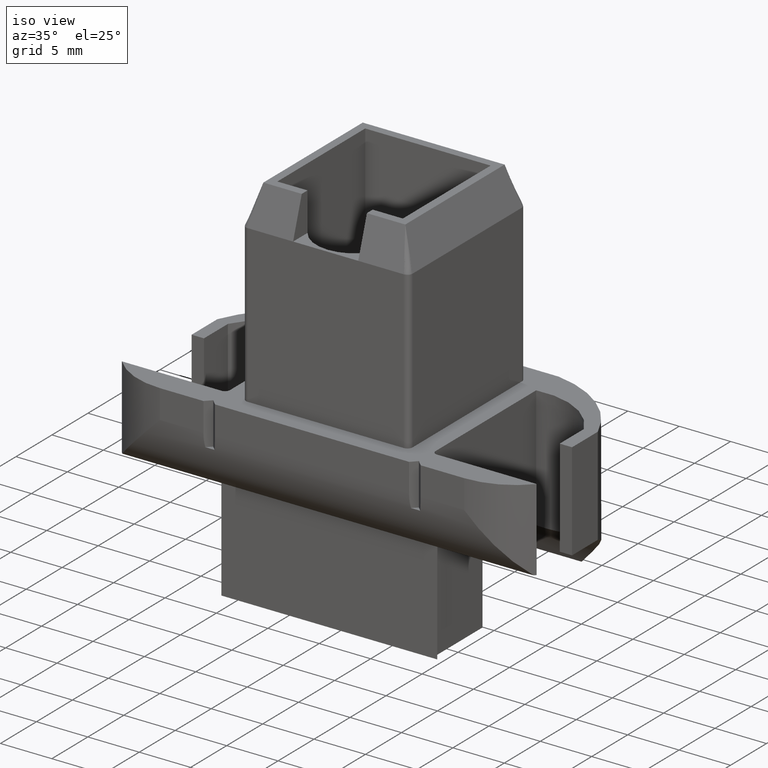
[diagram: clean part render]
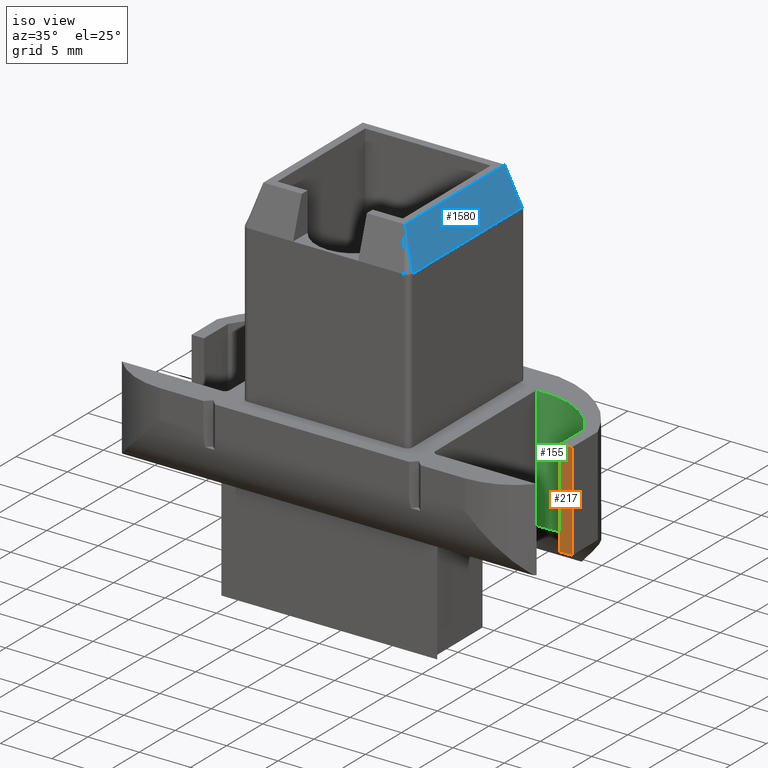
[diagram: same view with three faces highlighted in distinct colors, each labeled with its STEP entity id]
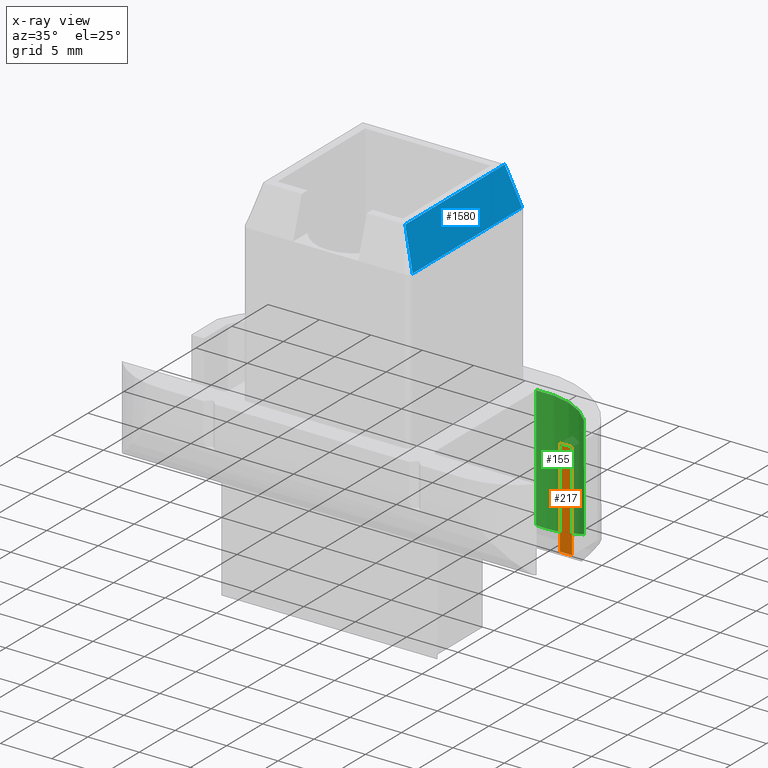
[diagram: x-ray of the same camera — body ghosted, the three highlighted faces saturated]
A machine part, iso view with three faces highlighted in distinct colors.
The next image is the same camera in x-ray (body ghosted, the three faces saturated) — at least one of them is partly hidden behind the body in this view.
Their STEP definitions:

[orange] entity #217 — the highlighted planar face has unit normal (0, -1, 0).
#162=CARTESIAN_POINT('',(17.300258850071259,3.700000012915627,8.500258855412540));
#163=VERTEX_POINT('',#162);
#170=CARTESIAN_POINT('',(17.300258850071259,3.700000258095811,17.999843148824084));
#171=VERTEX_POINT('',#170);
#172=CARTESIAN_POINT('',(17.300258850071259,3.700000012915627,8.500258855412501));
#173=DIRECTION('',(0.0,0.000000025809570,1.000000000000000));
#174=VECTOR('',#173,9.499584293411580);
#175=LINE('',#172,#174);
#176=EDGE_CURVE('',#163,#171,#175,.T.);
#187=CARTESIAN_POINT('',(17.300258850071259,3.699999483808718,-12.000156851175916));
#188=DIRECTION('',(0.0,-1.000000000000000,0.000000025809570));
#189=DIRECTION('',(1.0,0.0,0.0));
#190=AXIS2_PLACEMENT_3D('',#187,#188,#189);
#191=PLANE('',#190);
#192=ORIENTED_EDGE('',*,*,#176,.F.);
#193=CARTESIAN_POINT('',(18.500258850071077,3.700000012915625,8.500258855412540));
#194=VERTEX_POINT('',#193);
#195=CARTESIAN_POINT('',(17.300258850071259,3.700000012915627,8.500258855412540));
#196=DIRECTION('',(1.0,0.0,0.0));
#197=VECTOR('',#196,1.199999999999818);
#198=LINE('',#195,#197);
#199=EDGE_CURVE('',#163,#194,#198,.T.);
#200=ORIENTED_EDGE('',*,*,#199,.T.);
#201=CARTESIAN_POINT('',(18.500258850071077,3.700000258095807,17.999843148824084));
#202=VERTEX_POINT('',#201);
#203=CARTESIAN_POINT('',(18.500258850071077,3.700000012915624,8.500258855412501));
#204=DIRECTION('',(0.0,0.000000025809570,1.000000000000000));
#205=VECTOR('',#204,9.499584293411580);
#206=LINE('',#203,#205);
#207=EDGE_CURVE('',#194,#202,#206,.T.);
#208=ORIENTED_EDGE('',*,*,#207,.T.);
#209=CARTESIAN_POINT('',(17.300258850071259,3.700000258095811,17.999843148824084));
#210=DIRECTION('',(1.0,0.0,0.0));
#211=VECTOR('',#210,1.199999999999818);
#212=LINE('',#209,#211);
#213=EDGE_CURVE('',#171,#202,#212,.T.);
#214=ORIENTED_EDGE('',*,*,#213,.F.);
#215=EDGE_LOOP('',(#192,#200,#208,#214));
#216=FACE_OUTER_BOUND('',#215,.T.);
#217=ADVANCED_FACE('',(#216),#191,.T.);

[blue] entity #1580 — the highlighted face is a freeform B-spline surface patch.
#1217=CARTESIAN_POINT('',(6.899999952316648,-2.899998997362399,36.999993470847699));
#1218=VERTEX_POINT('',#1217);
#1219=CARTESIAN_POINT('',(6.899999952316648,10.900000907270206,36.999993114675704));
#1220=VERTEX_POINT('',#1219);
#1221=CARTESIAN_POINT('',(6.899999952316648,-2.899998997362399,36.999993470847770));
#1222=DIRECTION('',(0.0,1.000000000000000,-0.000000025809575));
#1223=VECTOR('',#1222,13.799999904632607);
#1224=LINE('',#1221,#1223);
#1225=EDGE_CURVE('',#1218,#1220,#1224,.T.);
#1284=CARTESIAN_POINT('',(8.100000000000364,11.600000858630819,33.267949014442252));
#1285=VERTEX_POINT('',#1284);
#1292=CARTESIAN_POINT('',(8.100000000000364,-3.599999141369102,33.267949406747675));
#1293=VERTEX_POINT('',#1292);
#1294=CARTESIAN_POINT('',(8.100000000000364,-3.599999141368453,33.267949406747675));
#1295=DIRECTION('',(0.0,1.000000000000000,-0.000000025809567));
#1296=VECTOR('',#1295,15.199999999999928);
#1297=LINE('',#1294,#1296);
#1298=EDGE_CURVE('',#1293,#1285,#1297,.T.);
#1549=CARTESIAN_POINT('',(8.100000000000364,-3.599999141368453,33.267949406747675));
#1550=CARTESIAN_POINT('',(7.699999984105792,-3.599999109260970,34.511964100803276));
#1551=CARTESIAN_POINT('',(7.299999968211220,-3.599999077153486,35.755978794858869));
#1552=CARTESIAN_POINT('',(6.899999952316648,-3.599999045046002,36.999993488914470));
#1553=CARTESIAN_POINT('',(8.100000000000364,1.466667525298187,33.267949275979198));
#1554=CARTESIAN_POINT('',(7.699999984105792,1.466667557405670,34.511963970034785));
#1555=CARTESIAN_POINT('',(7.299999968211220,1.466667589513155,35.755978664090371));
#1556=CARTESIAN_POINT('',(6.899999952316648,1.466667621620638,36.999993358145957));
#1557=CARTESIAN_POINT('',(8.100000000000364,6.533334191964828,33.267949145210729));
#1558=CARTESIAN_POINT('',(7.699999984105792,6.533334224072310,34.511963839266301));
#1559=CARTESIAN_POINT('',(7.299999968211220,6.533334256179796,35.755978533321873));
#1560=CARTESIAN_POINT('',(6.899999952316648,6.533334288287278,36.999993227377445));
#1561=CARTESIAN_POINT('',(8.100000000000364,11.600000858631470,33.267949014442252));
#1562=CARTESIAN_POINT('',(7.699999984105792,11.600000890738951,34.511963708497809));
#1563=CARTESIAN_POINT('',(7.299999968211220,11.600000922846437,35.755978402553374));
#1564=CARTESIAN_POINT('',(6.899999952316648,11.600000954953920,36.999993096608932));
#1565=B_SPLINE_SURFACE_WITH_KNOTS('',3,3,((#1549,#1553,#1557,#1561),(#1550,#1554,#1558,#1562),(#1551,#1555,#1559,#1563),(#1552,#1556,#1560,#1564)),.UNSPECIFIED.,.F.,.F.,.U.,(4,4),(4,4),(0.0,3.920223609142302),(0.0,15.199999999999928),.UNSPECIFIED.);
#1566=ORIENTED_EDGE('',*,*,#1298,.T.);
#1567=CARTESIAN_POINT('',(6.899999952316648,10.900000907270204,36.999993114675632));
#1568=CARTESIAN_POINT('',(8.100000000000364,11.600000858631466,33.267949014442252));
#1569=QUASI_UNIFORM_CURVE('',1,(#1567,#1568),.UNSPECIFIED.,.F.,.U.);
#1570=EDGE_CURVE('',#1220,#1285,#1569,.T.);
#1571=ORIENTED_EDGE('',*,*,#1570,.F.);
#1572=ORIENTED_EDGE('',*,*,#1225,.F.);
#1573=CARTESIAN_POINT('',(8.100000000000364,-3.599999141368453,33.267949406747675));
#1574=CARTESIAN_POINT('',(6.899999952316653,-2.899998997362395,36.999993470847755));
#1575=QUASI_UNIFORM_CURVE('',1,(#1573,#1574),.UNSPECIFIED.,.F.,.U.);
#1576=EDGE_CURVE('',#1293,#1218,#1575,.T.);
#1577=ORIENTED_EDGE('',*,*,#1576,.F.);
#1578=EDGE_LOOP('',(#1566,#1571,#1572,#1577));
#1579=FACE_OUTER_BOUND('',#1578,.T.);
#1580=ADVANCED_FACE('',(#1579),#1565,.F.);

[green] entity #155 — the highlighted cylindrical surface (partial cylindrical patch) has radius 7.2443 mm, axis along (-0, -0, -1).
#82=CARTESIAN_POINT('',(10.000000000282853,10.856881853264106,6.139427365974938));
#83=VERTEX_POINT('',#82);
#91=CARTESIAN_POINT('',(10.000000000282853,10.856882159376342,17.999842964108097));
#92=VERTEX_POINT('',#91);
#93=CARTESIAN_POINT('',(10.000000000282853,10.856881853264118,6.139427365974882));
#94=DIRECTION('',(0.0,0.000000025809570,1.000000000000000));
#95=VECTOR('',#94,11.860415598133212);
#96=LINE('',#93,#95);
#97=EDGE_CURVE('',#83,#92,#96,.T.);
#108=CARTESIAN_POINT('',(10.884109055991757,3.666758617589615,-12.000156850317921));
#109=DIRECTION('',(-4.963084E-024,-0.000000025809570,-1.000000000000000));
#110=DIRECTION('',(-0.122042455124757,0.992524880870561,-0.000000025616640));
#111=AXIS2_PLACEMENT_3D('',#108,#109,#110);
#112=CYLINDRICAL_SURFACE('',#111,7.244274583014028);
#113=ORIENTED_EDGE('',*,*,#97,.F.);
#114=CARTESIAN_POINT('',(17.167732325668112,7.271699207069666,8.500258763228544));
#115=VERTEX_POINT('',#114);
#116=CARTESIAN_POINT('',(17.167732325668112,7.271699207069606,8.500258763228544));
#117=CARTESIAN_POINT('',(17.013061484911304,7.541299607533507,8.390714403358857));
#118=CARTESIAN_POINT('',(16.561365851268420,8.222188070038211,8.081002877019841));
#119=CARTESIAN_POINT('',(15.620272591445428,9.225427017101570,7.495817433844990));
#120=CARTESIAN_POINT('',(14.393214783705844,10.063233381844960,6.865386140950476));
#121=CARTESIAN_POINT('',(13.176422648550215,10.569137685247846,6.417375820858296));
#122=CARTESIAN_POINT('',(12.081700507715141,10.837003785079407,6.160294028549173));
#123=CARTESIAN_POINT('',(11.045888632068454,10.936092704757918,6.060300695475802));
#124=CARTESIAN_POINT('',(10.327651159551351,10.897170365576450,6.099674460610117));
#125=CARTESIAN_POINT('',(10.000000000282853,10.856881853264085,6.139427365974938));
#126=B_SPLINE_CURVE_WITH_KNOTS('',3,(#116,#117,#118,#119,#120,#121,#122,#123,#124,#125),.UNSPECIFIED.,.F.,.U.,(4,1,1,1,1,1,1,4),(0.0,0.989310461209840,2.614913976888920,4.464986304283890,5.801680840917173,6.771506348556089,7.920722288090917,8.919740062452293),.UNSPECIFIED.);
#127=EDGE_CURVE('',#115,#83,#126,.T.);
#128=ORIENTED_EDGE('',*,*,#127,.F.);
#129=CARTESIAN_POINT('',(17.300258850071259,7.030170518211554,8.500258769462221));
#130=VERTEX_POINT('',#129);
#131=CARTESIAN_POINT('',(10.884109055991757,3.666759146696526,8.500258856270309));
#132=DIRECTION('',(4.963084E-024,0.000000025809570,1.000000000000000));
#133=DIRECTION('',(0.885685615661744,0.464285461984195,-0.000000011983008));
#134=AXIS2_PLACEMENT_3D('',#131,#132,#133);
#135=CIRCLE('',#134,7.244274583014028);
#136=EDGE_CURVE('',#130,#115,#135,.T.);
#137=ORIENTED_EDGE('',*,*,#136,.F.);
#138=CARTESIAN_POINT('',(17.300258850071259,7.030170763391736,17.999843062873765));
#139=VERTEX_POINT('',#138);
#140=CARTESIAN_POINT('',(17.300258850071259,7.030170518211553,8.500258769462178));
#141=DIRECTION('',(0.0,0.000000025809570,1.000000000000000));
#142=VECTOR('',#141,9.499584293411694);
#143=LINE('',#140,#142);
#144=EDGE_CURVE('',#130,#139,#143,.T.);
#145=ORIENTED_EDGE('',*,*,#144,.T.);
#146=CARTESIAN_POINT('',(10.884109055991759,3.666759391876712,17.999843149682089));
#147=DIRECTION('',(-4.963084E-024,-0.000000025809570,-1.0));
#148=DIRECTION('',(0.885685615661744,0.464285461984196,-0.000000011983008));
#149=AXIS2_PLACEMENT_3D('',#146,#147,#148);
#150=CIRCLE('',#149,7.244274583014028);
#151=EDGE_CURVE('',#92,#139,#150,.T.);
#152=ORIENTED_EDGE('',*,*,#151,.F.);
#153=EDGE_LOOP('',(#113,#128,#137,#145,#152));
#154=FACE_OUTER_BOUND('',#153,.T.);
#155=ADVANCED_FACE('',(#154),#112,.F.);